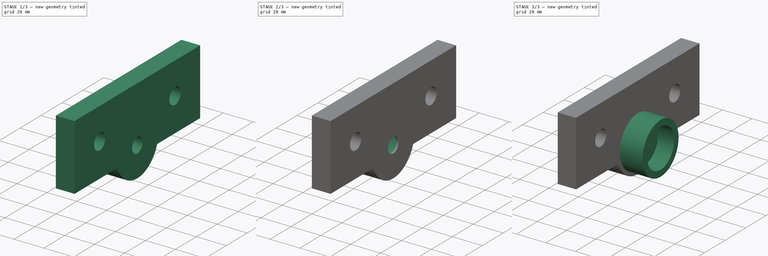
[diagram: build sequence overview — one tinted view per stage of 3, left to right]
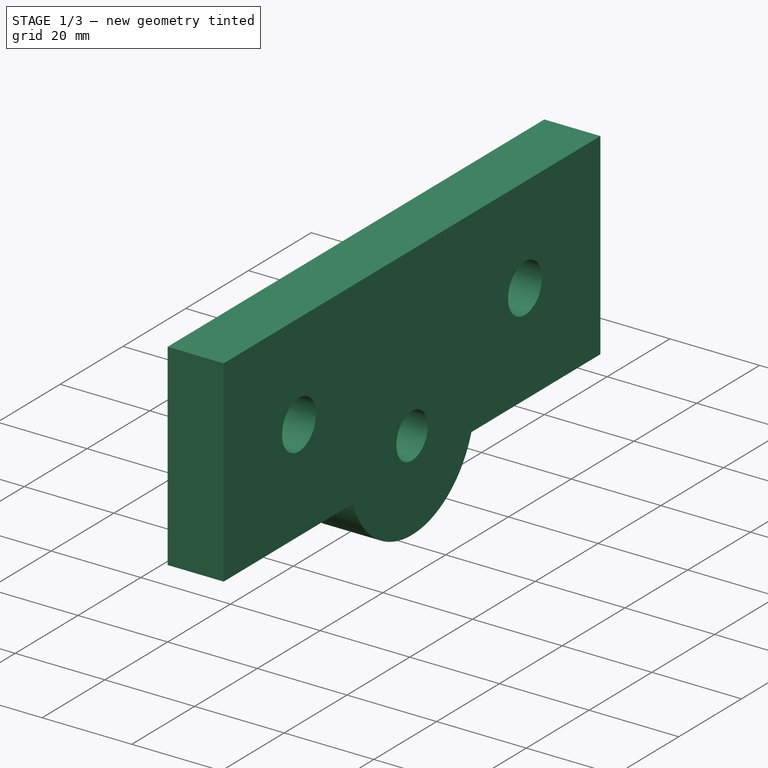
[diagram: stage 1 of 3 — iso view after this stage's code; geometry added in this stage tinted green]
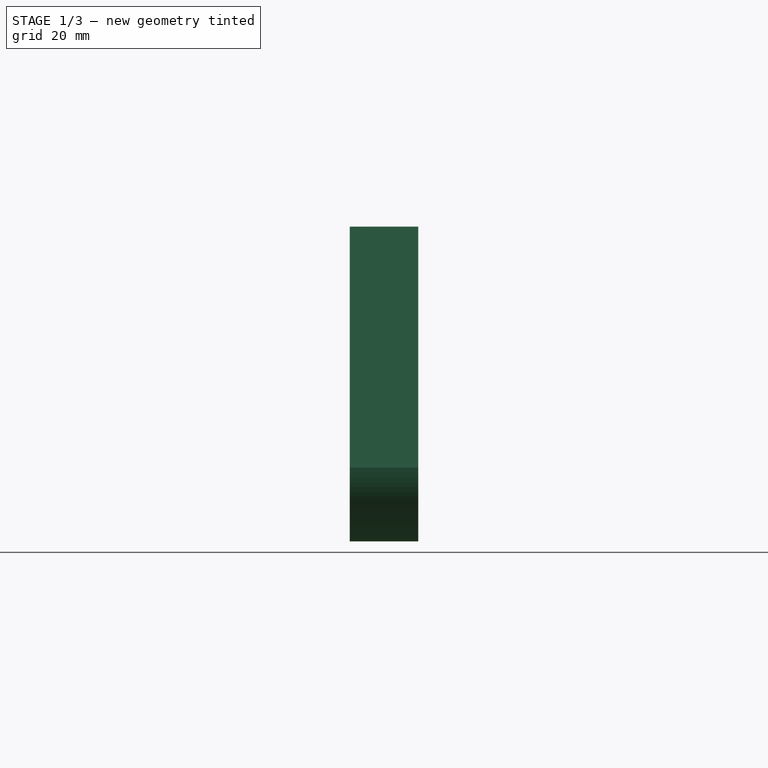
[diagram: stage 1 of 3 — front view after this stage's code; geometry added in this stage tinted green]
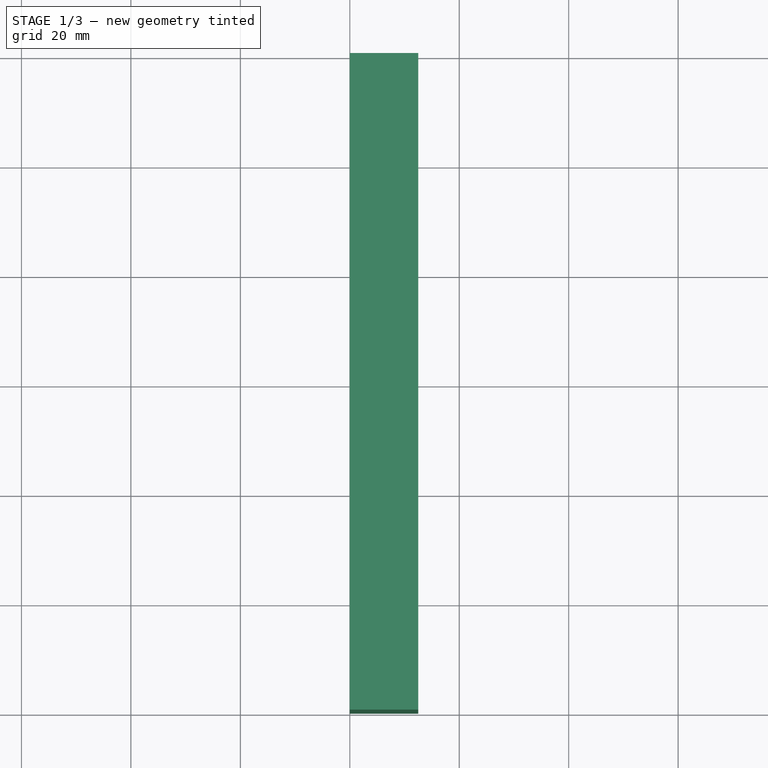
[diagram: stage 1 of 3 — top view after this stage's code; geometry added in this stage tinted green]
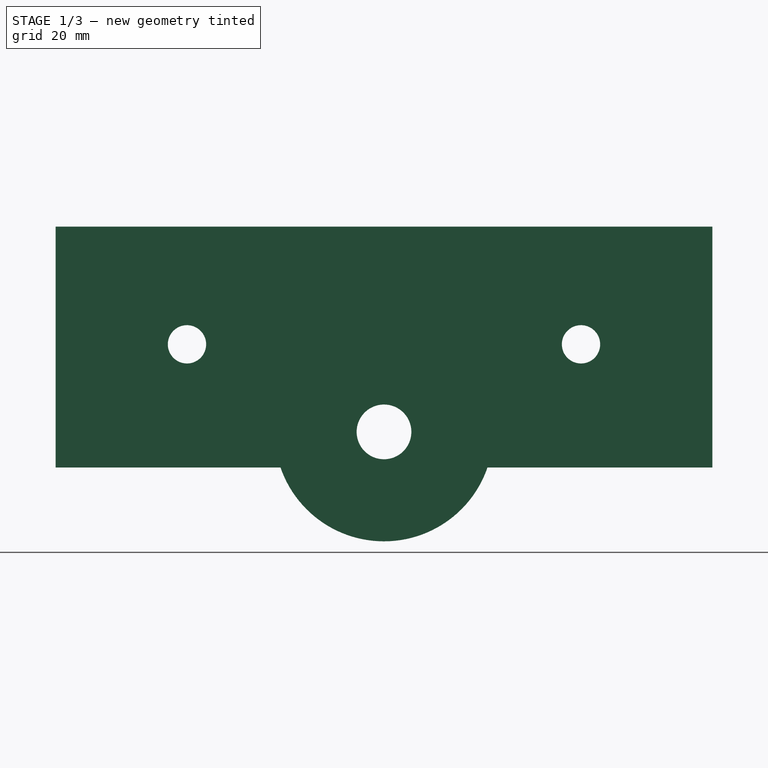
[diagram: stage 1 of 3 — right view after this stage's code; geometry added in this stage tinted green]
FCSTD DOCUMENT  (FreeCAD 0.16R5521 (Git))
Label: Bearing-seat-133
License: All rights reserved
LicenseURL: http://en.wikipedia.org/wiki/All_rights_reserved
objects: Sketcher::SketchObject×5, PartDesign::Pocket×3, PartDesign::Pad×2
note: 15 computed .brp shape members not serialized (recipe doc carries the construction recipe); baked Part::Feature solids carry a one-line shape summary decoded from their .brp

FEATURE [Sketcher::SketchObject] Sketch
  Placement = pos=(0,0,0) rot=(0.57735,0.57735,0.57735;2.0944rad)
  sketch-geometry (9):
    g0: LineSegment StartX=-18.9143 StartY=-44 StartZ=0 EndX=-60 EndY=-44 EndZ=0
    g1: LineSegment StartX=-60 StartY=-44 StartZ=0 EndX=-60 EndY=0 EndZ=0
    g2: LineSegment StartX=-60 StartY=0 StartZ=0 EndX=60 EndY=0 EndZ=0
    g3: LineSegment StartX=60 StartY=0 StartZ=0 EndX=60 EndY=-44 EndZ=0
    g4: LineSegment StartX=60 StartY=-44 StartZ=0 EndX=18.9143 EndY=-44 EndZ=0
    g5: ArcOfCircle CenterX=0 CenterY=-37.5 CenterZ=0 NormalX=0 NormalY=0 NormalZ=1 Radius=20 StartAngle=3.4726 EndAngle=5.95217
    g6: Circle CenterX=-36 CenterY=-21.5 CenterZ=0 NormalX=0 NormalY=0 NormalZ=1 Radius=3.5
    g7: Circle CenterX=36 CenterY=-21.5 CenterZ=0 NormalX=0 NormalY=0 NormalZ=1 Radius=3.5
    g8: Circle CenterX=0 CenterY=-37.5 CenterZ=0 NormalX=0 NormalY=0 NormalZ=1 Radius=5
  constraints (27):
    c: Horizontal(g0)
    c: Coincident(g0,g1)
    c: Vertical(g1)
    c: Coincident(g1,g2)
    c: Horizontal(g2)
    c: Coincident(g2,g3)
    c: Vertical(g3)
    c: Coincident(g3,g4)
    c: Horizontal(g4)
    c: DistanceY(g-1,g2) = 0
    c: PointOnObject(g5,g-2)
    c: Coincident(g5,g4)
    c: Coincident(g0,g5)
    c: DistanceX(g-1,g8) = 0
    c: Symmetric(g6,g7,g-2)
    c: Symmetric(g1,g2,g-2)
    c: Radius(g8) = 5
    c: DistanceX(g1,g2) = 120
    c: Equal(g6,g7)
    c: Radius(g6) = 3.5
    c: DistanceX(g6,g7) = 72
    c: DistanceY(g6,g1) = 21.5
    c: DistanceY(g0,g1) = 44
    c: Equal(g1,g3)
    c: Radius(g5) = 20
    c: DistanceY(g8,g2) = 37.5
    c: DistanceY(g5,g2) = 37.5
FEATURE [PartDesign::Pad] Pad
  Length = 12.5
  Length2 = 100
  Placement = pos=(0,0,0) rot=(0.57735,0.57735,0.57735;2.0944rad)
  Sketch = -> Sketch
  Type = 0
FEATURE [Sketcher::SketchObject] Sketch001
  Placement = pos=(12.5,0,0) rot=(0.57735,0.57735,0.57735;2.0944rad)
  Support = -> Pad [Face11]
  sketch-geometry (2):
    g0: Circle CenterX=-36 CenterY=-21.5 CenterZ=0 NormalX=0 NormalY=0 NormalZ=1 Radius=5.4
    g1: Circle CenterX=36 CenterY=-21.5 CenterZ=0 NormalX=0 NormalY=0 NormalZ=1 Radius=5.4
  constraints (5):
    c: Radius(g0) = 5.4
    c: Equal(g0,g1)
    c: Symmetric(g0,g1,g-2)
    c: DistanceX(g0,g1) = 72
    c: DistanceY(g-1,g1) = -21.5
FEATURE [PartDesign::Pocket] Pocket  label="Counter Sink"
  Length = 11
  Placement = pos=(0,0,0) rot=(0.57735,0.57735,0.57735;2.0944rad)
  Sketch = -> Sketch001
  Type = 0
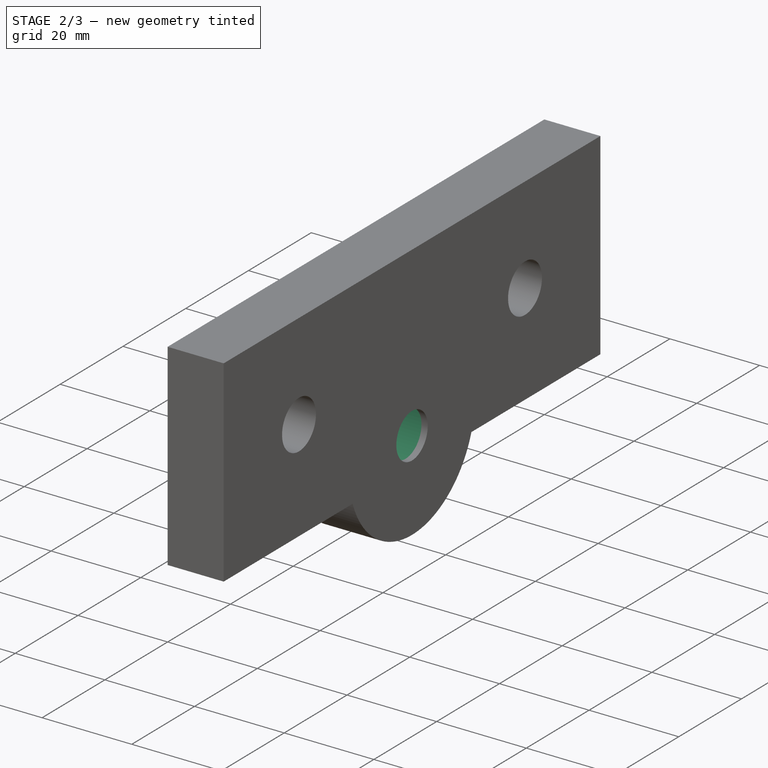
[diagram: stage 2 of 3 — iso view after this stage's code; geometry added in this stage tinted green]
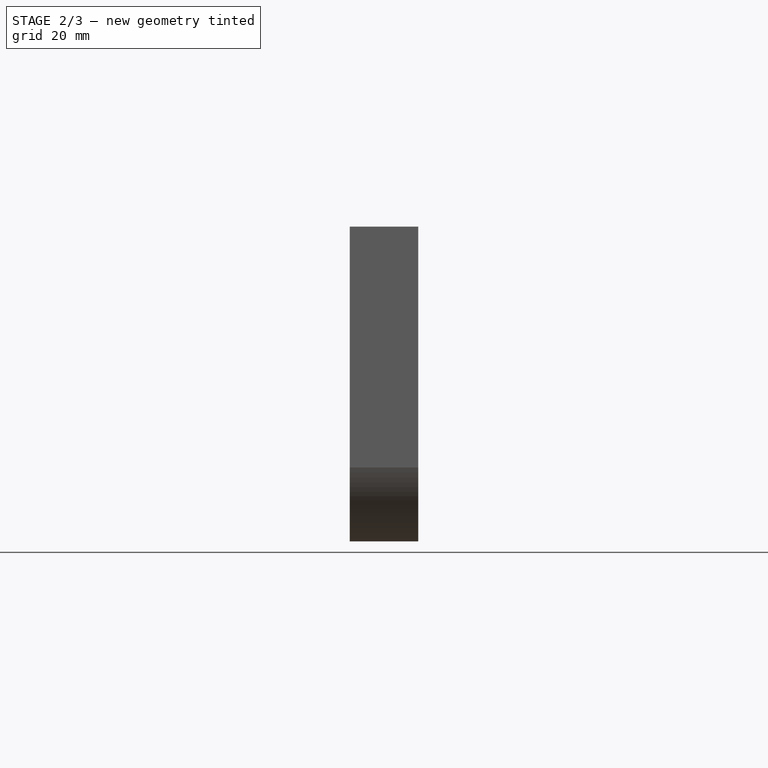
[diagram: stage 2 of 3 — front view after this stage's code; geometry added in this stage tinted green]
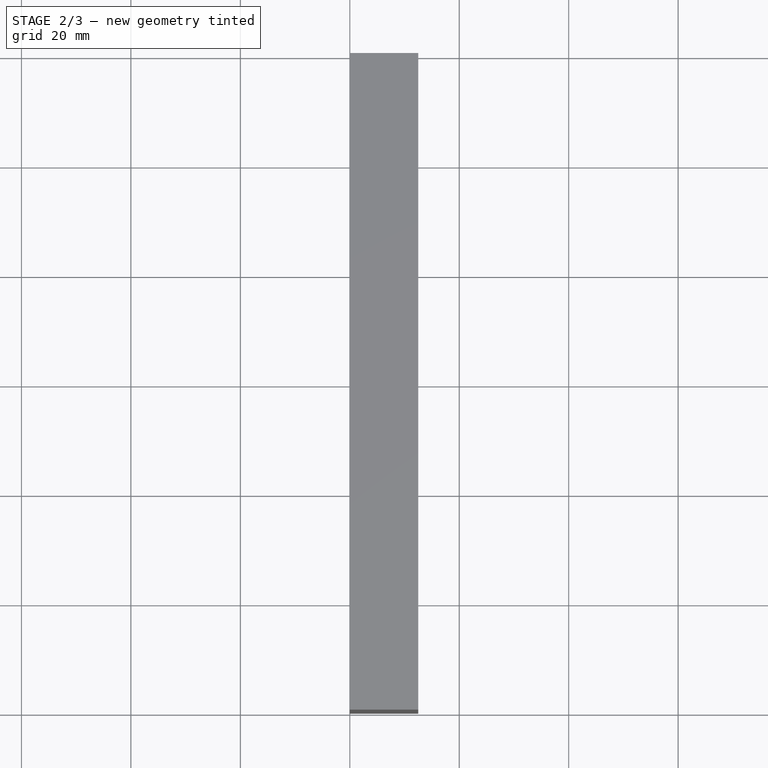
[diagram: stage 2 of 3 — top view after this stage's code; geometry added in this stage tinted green]
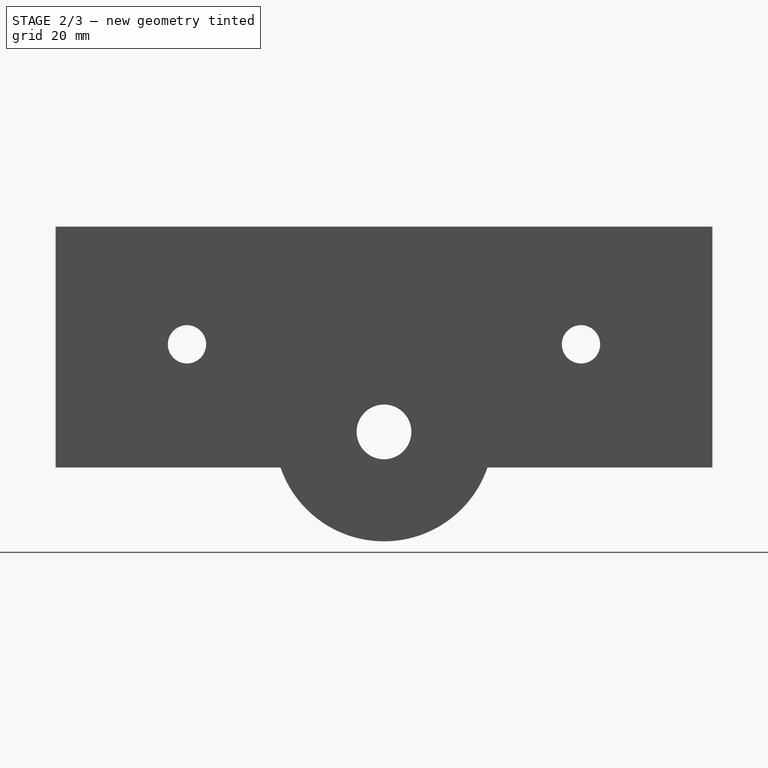
[diagram: stage 2 of 3 — right view after this stage's code; geometry added in this stage tinted green]
FEATURE [Sketcher::SketchObject] Sketch002
  Placement = pos=(0,0,0) rot=(0.57735,0.57735,-0.57735;4.18879rad)
  Support = -> Pocket [Face4]
  sketch-geometry (1):
    g0: Circle CenterX=0 CenterY=37.5 CenterZ=0 NormalX=0 NormalY=0 NormalZ=1 Radius=13.25
  constraints (3):
    c: PointOnObject(g0,g-2)
    c: Radius(g0) = 13.25
    c: DistanceY(g-1,g0) = 37.5
FEATURE [PartDesign::Pocket] Pocket001
  Length = 11.1
  Placement = pos=(0,0,0) rot=(0.57735,0.57735,0.57735;2.0944rad)
  Sketch = -> Sketch002
  Type = 0
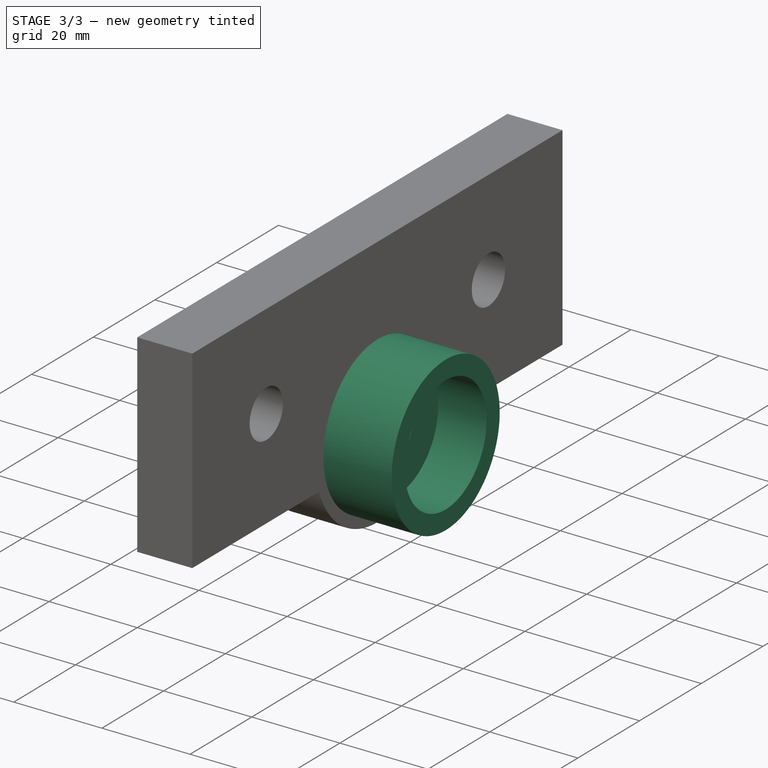
[diagram: stage 3 of 3 — iso view after this stage's code; geometry added in this stage tinted green]
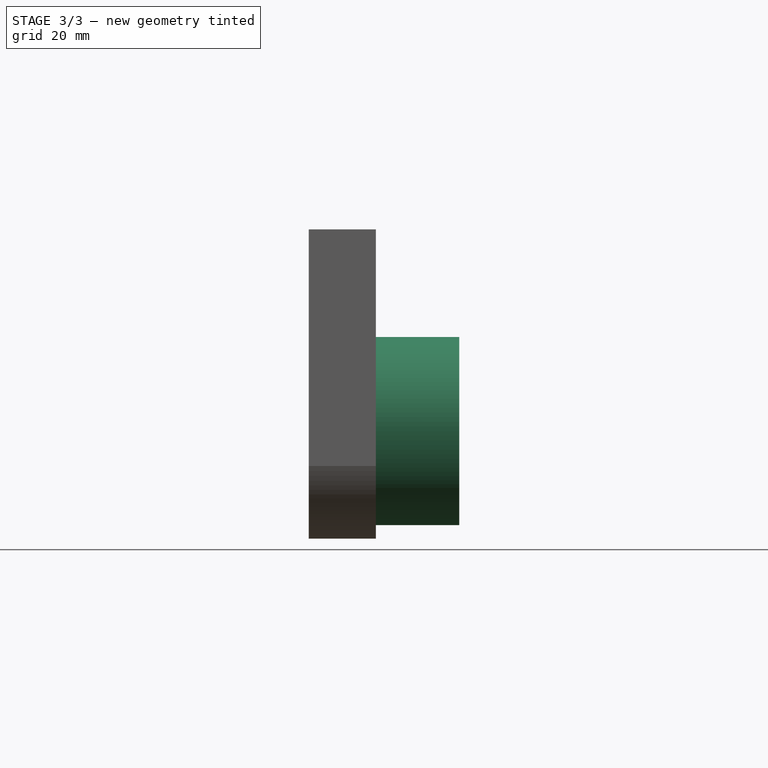
[diagram: stage 3 of 3 — front view after this stage's code; geometry added in this stage tinted green]
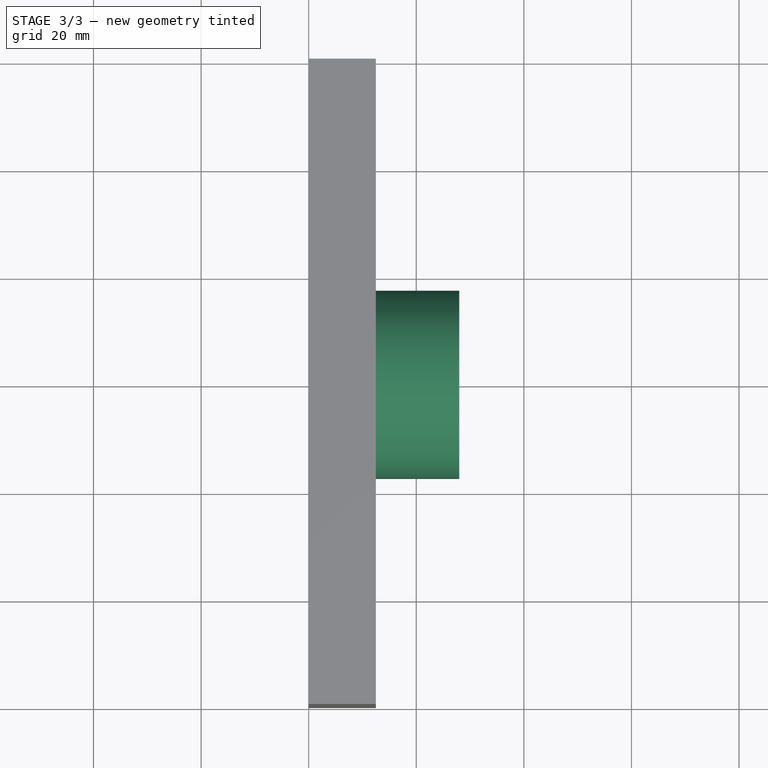
[diagram: stage 3 of 3 — top view after this stage's code; geometry added in this stage tinted green]
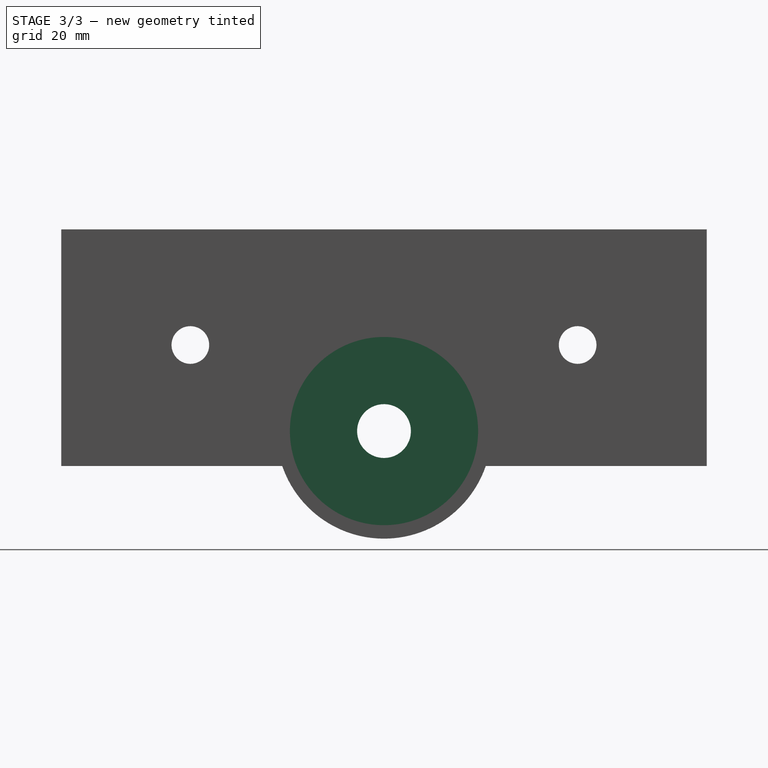
[diagram: stage 3 of 3 — right view after this stage's code; geometry added in this stage tinted green]
FEATURE [Sketcher::SketchObject] Sketch003
  Placement = pos=(12.5,0,0) rot=(0.57735,0.57735,0.57735;2.0944rad)
  Support = -> Pocket001 [Face5]
  sketch-geometry (2):
    g0: Circle CenterX=0 CenterY=-37.5 CenterZ=0 NormalX=0 NormalY=0 NormalZ=1 Radius=17.5
    g1: Circle CenterX=0 CenterY=-37.5 CenterZ=0 NormalX=0 NormalY=0 NormalZ=1 Radius=5
  constraints (5):
    c: PointOnObject(g0,g-2)
    c: Radius(g0) = 17.5
    c: Coincident(g1,g0)
    c: Radius(g1) = 5
    c: DistanceY(g-1,g0) = -37.5
FEATURE [PartDesign::Pad] Pad001
  Length = 15.5
  Length2 = 100
  Placement = pos=(0,0,0) rot=(0.57735,0.57735,0.57735;2.0944rad)
  Sketch = -> Sketch003
  Type = 0
FEATURE [Sketcher::SketchObject] Sketch004
  Placement = pos=(28,0,0) rot=(0.57735,0.57735,0.57735;2.0944rad)
  Support = -> Pad001 [Face18]
  sketch-geometry (1):
    g0: Circle CenterX=0 CenterY=-37.5 CenterZ=0 NormalX=0 NormalY=0 NormalZ=1 Radius=13.25
  constraints (3):
    c: PointOnObject(g0,g-2)
    c: Radius(g0) = 13.25
    c: DistanceY(g-1,g0) = -37.5
FEATURE [PartDesign::Pocket] Pocket002
  Length = 11
  Placement = pos=(0,0,0) rot=(0.57735,0.57735,0.57735;2.0944rad)
  Sketch = -> Sketch004
  Type = 0
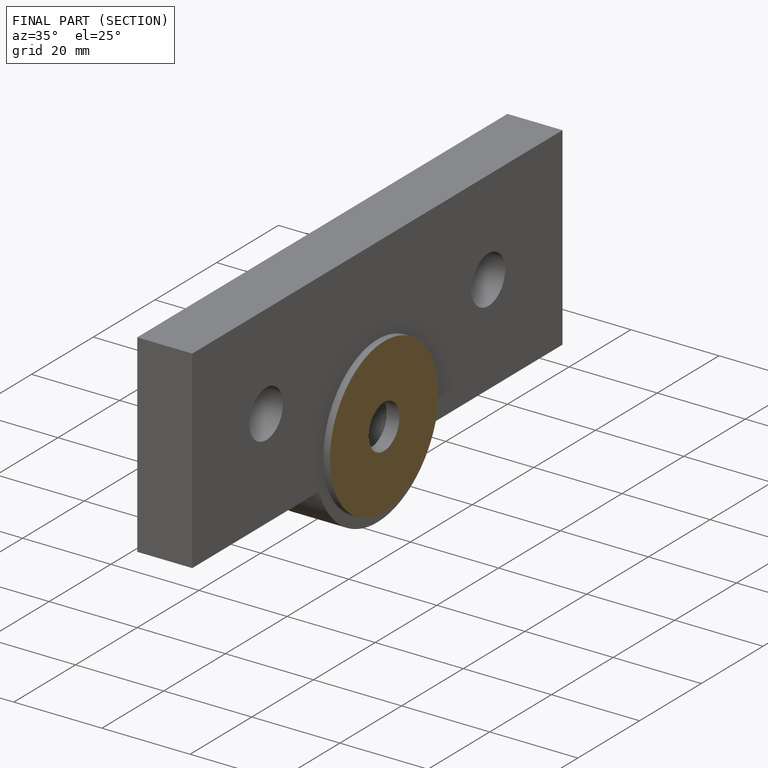
[diagram: finished part — half-section view (interior)]
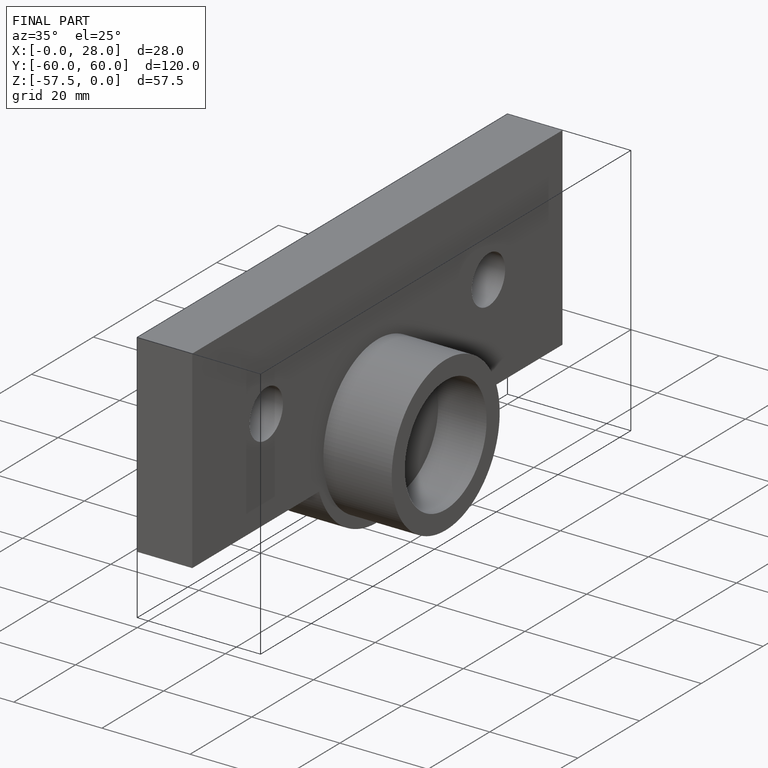
[diagram: finished part — iso view with bounding-box wireframe]
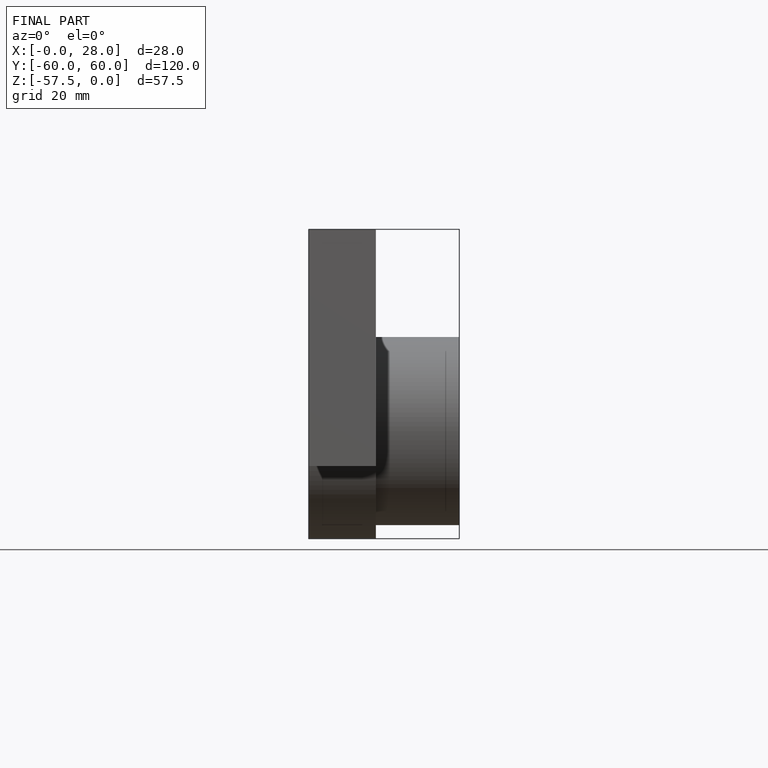
[diagram: finished part — front view with bounding-box wireframe]
